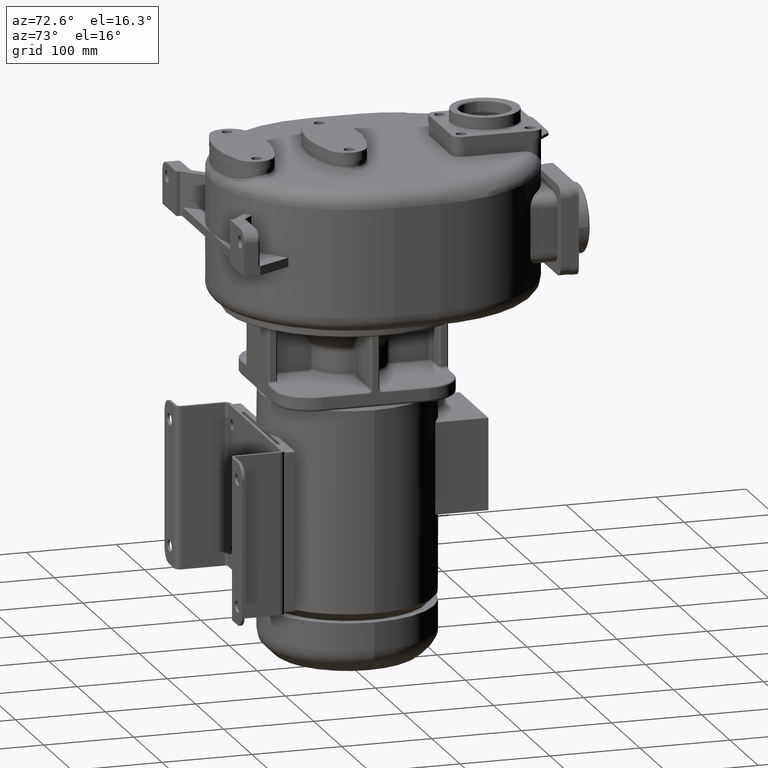
[diagram: clean part render]
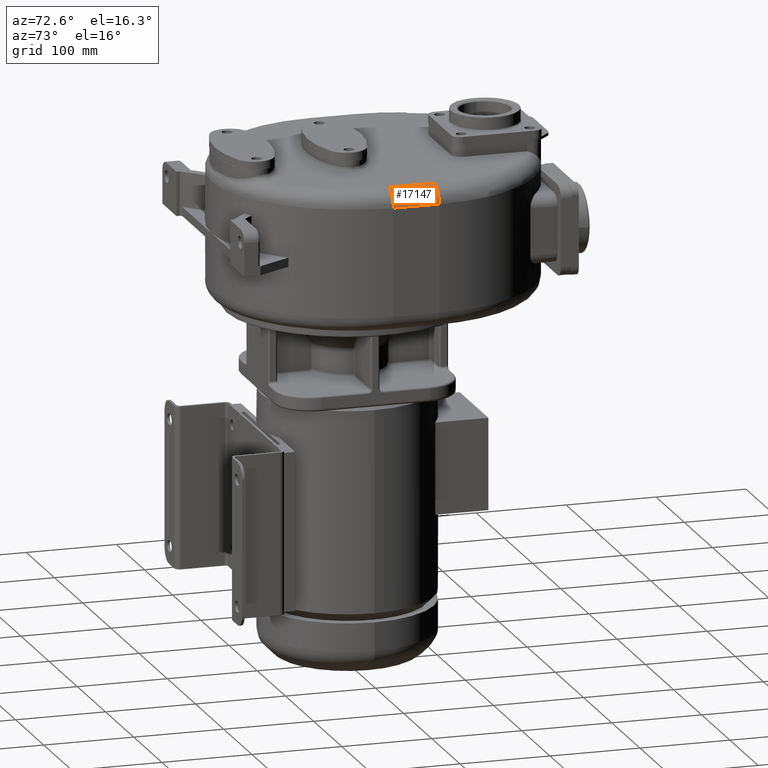
[diagram: same view with one face highlighted and labeled with its STEP entity id]
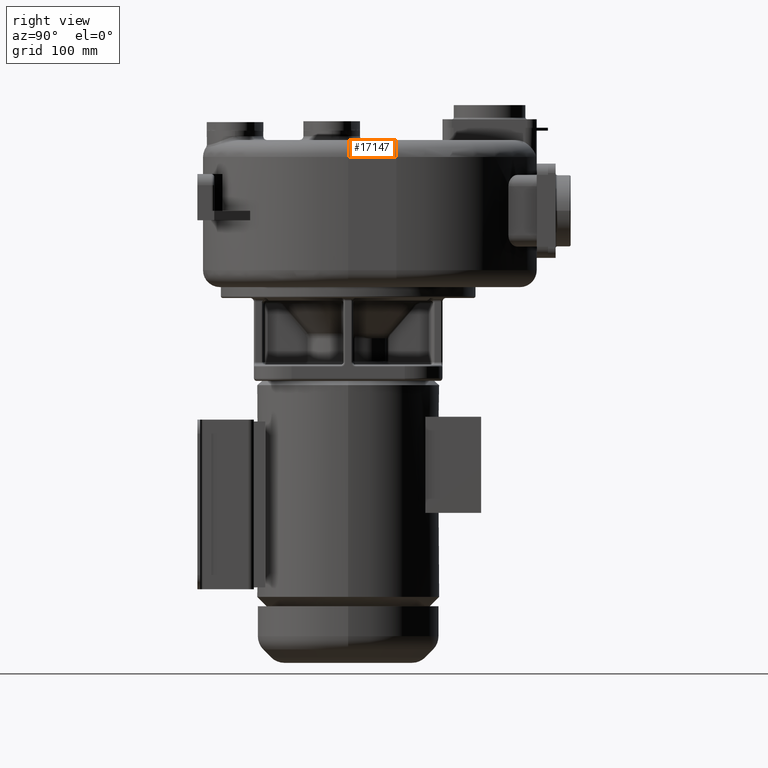
[diagram: same view with one face highlighted and labeled with its STEP entity id]
A machine part, auxiliary view. The second image highlights one B-rep face of the part: STEP entity #17147.
A second angle (right view) of the same face is appended — the face is thin or edge-on in the first view.
In plain terms, the highlighted cylindrical surface (edge-blend (fillet) strip) has radius 18 mm, axis along (0, 1, 0).
Its self-contained STEP definition (entity closure, byte-faithful):
#1912=DIRECTION('',(0.E0,1.E0,0.E0));
#1913=VECTOR('',#1912,5.117894898810E1);
#1914=CARTESIAN_POINT('',(1.455E2,2.232246826167E-13,2.535E2));
#1915=LINE('',#1914,#1913);
#3212=CARTESIAN_POINT('',(1.455E2,0.E0,2.355E2));
#3213=DIRECTION('',(0.E0,1.E0,0.E0));
#3214=DIRECTION('',(0.E0,0.E0,1.E0));
#3215=AXIS2_PLACEMENT_3D('',#3212,#3213,#3214);
#3217=CARTESIAN_POINT('',(1.455E2,5.117894898810E1,2.355E2));
#3218=DIRECTION('',(0.E0,1.E0,0.E0));
#3219=DIRECTION('',(0.E0,0.E0,1.E0));
#3220=AXIS2_PLACEMENT_3D('',#3217,#3218,#3219);
#4327=DIRECTION('',(0.E0,1.E0,0.E0));
#4328=VECTOR('',#4327,5.117894898807E1);
#4329=CARTESIAN_POINT('',(1.635E2,8.767261134333E-12,2.355E2));
#4330=LINE('',#4329,#4328);
#13574=CARTESIAN_POINT('',(1.635E2,5.117894898810E1,2.355E2));
#13576=VERTEX_POINT('',#13574);
#13578=CARTESIAN_POINT('',(1.455E2,5.117894898810E1,2.535E2));
#13580=VERTEX_POINT('',#13578);
#13582=CARTESIAN_POINT('',(1.455E2,2.232246826167E-13,2.535E2));
#13583=VERTEX_POINT('',#13582);
#13584=CARTESIAN_POINT('',(1.635E2,8.767261134333E-12,2.355E2));
#13585=VERTEX_POINT('',#13584);
#17134=CARTESIAN_POINT('',(1.455E2,-1.087179872674E0,2.355E2));
#17135=DIRECTION('',(0.E0,1.E0,0.E0));
#17136=DIRECTION('',(0.E0,0.E0,1.E0));
#17137=AXIS2_PLACEMENT_3D('',#17134,#17135,#17136);
#17138=CYLINDRICAL_SURFACE('',#17137,1.8E1);
#17139=ORIENTED_EDGE('',*,*,#16210,.T.);
#17141=ORIENTED_EDGE('',*,*,#17140,.T.);
#17143=ORIENTED_EDGE('',*,*,#17142,.F.);
#17144=ORIENTED_EDGE('',*,*,#16448,.F.);
#17145=EDGE_LOOP('',(#17139,#17141,#17143,#17144));
#17146=FACE_OUTER_BOUND('',#17145,.F.);
#17147=ADVANCED_FACE('',(#17146),#17138,.T.);
#3216=CIRCLE('',#3215,1.8E1);
#3221=CIRCLE('',#3220,1.8E1);
#16210=EDGE_CURVE('',#13583,#13580,#1915,.T.);
#16448=EDGE_CURVE('',#13583,#13585,#3216,.T.);
#17140=EDGE_CURVE('',#13580,#13576,#3221,.T.);
#17142=EDGE_CURVE('',#13585,#13576,#4330,.T.);